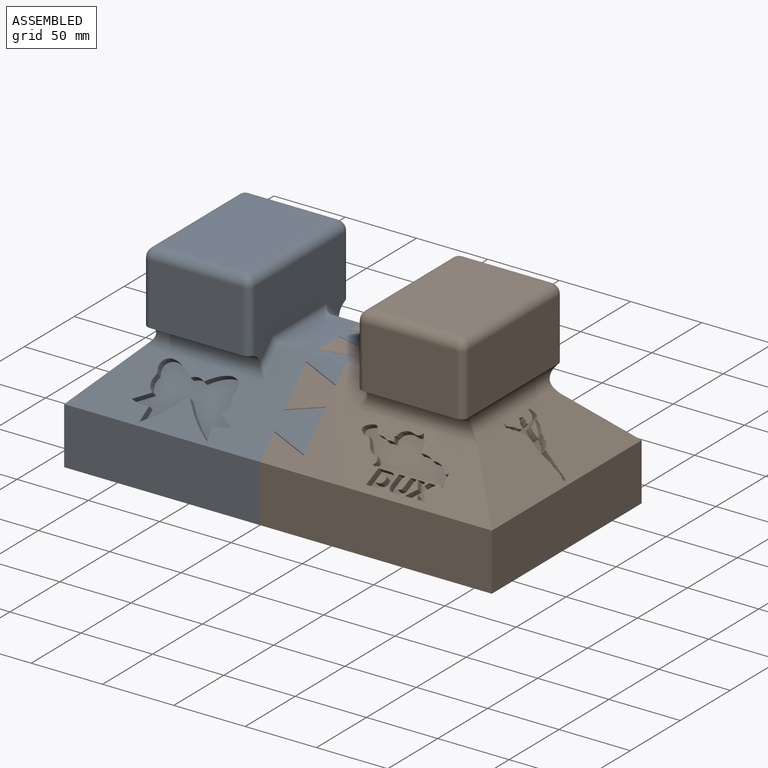
[diagram: assembled view]
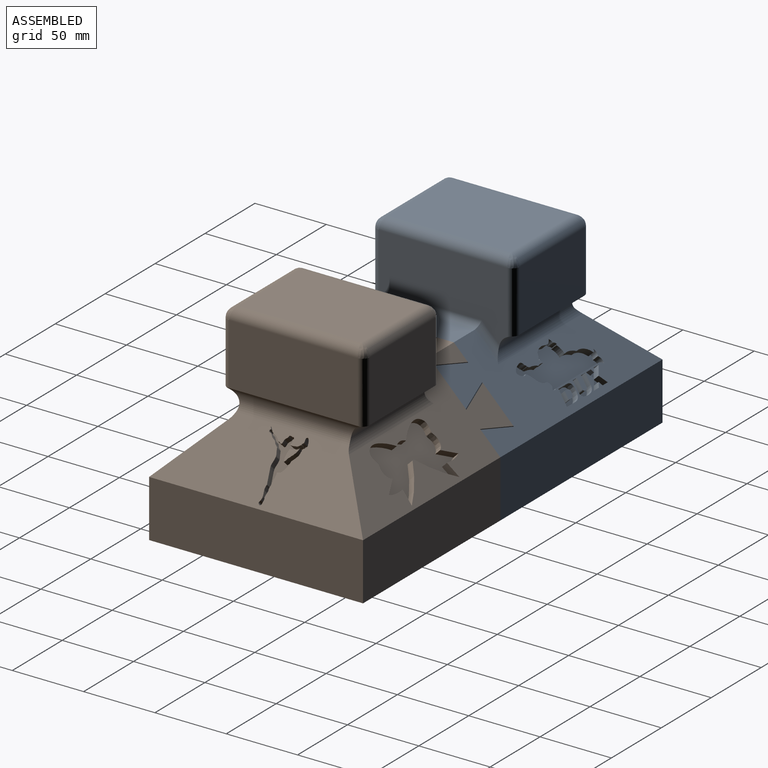
[diagram: assembled view, second angle]
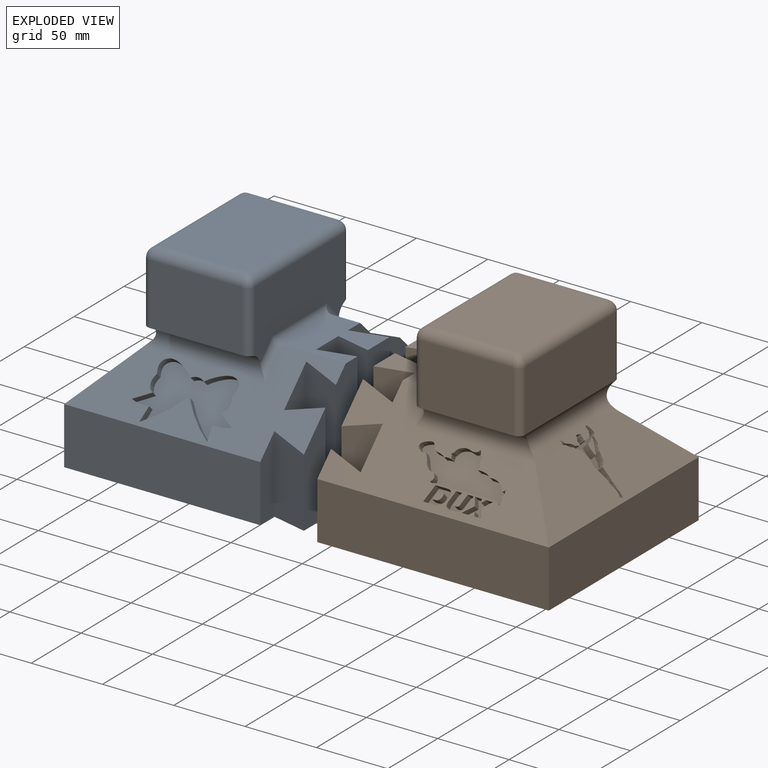
[diagram: exploded view]
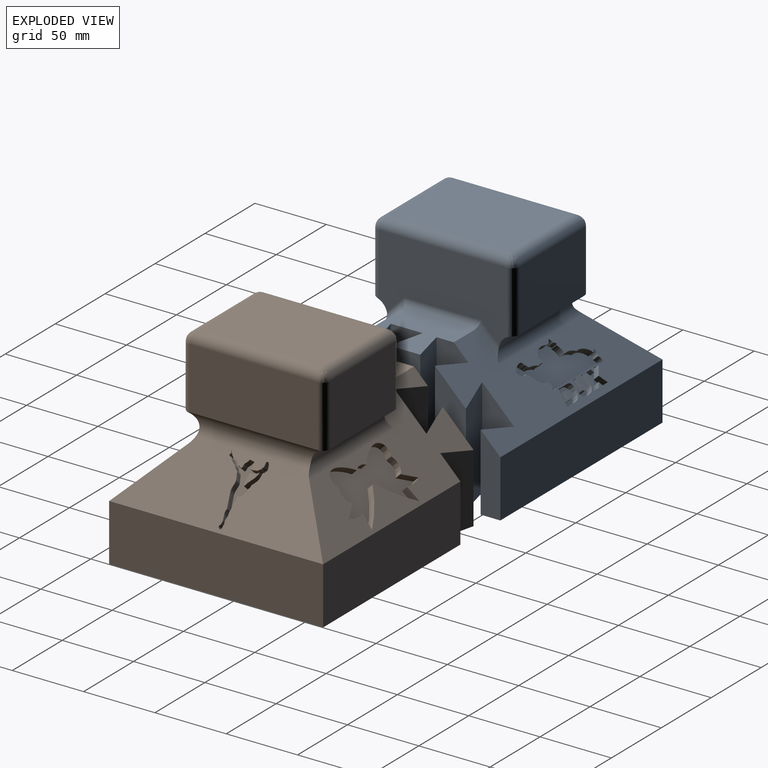
[diagram: exploded view, second angle]
ASSEMBLY  parts=2 mates=3
PART A: 138 faces, bbox 150x162.4x140 mm
  f0: plane 150x36.73mm, normal (0,0.71,0.71), area 5542.2mm2, adj f1,f2,f8,f15,f16,f17,f126,f127
  f1: plane 162.35x50mm, normal (0.71,0,0.71), area 5695.7mm2, adj f0,f6,f7,f17,f30,f34,f37,f38
  f2: plane 162.35x50mm, normal (-0.71,0,0.71), area 5332.3mm2, adj f0,f4,f6,f15,f32,f35,f36,f47
  f3: plane 162.35x150mm, normal (0,0,-1), area 22450.2mm2, adj f4,f7,f8,f33,f34,f35,f36,f37
  f4: plane 137.5x40mm, normal (-1,0,0), area 5500mm2, adj f2,f3,f8,f35
  f5: plane 70.6x0.86mm, normal (0,0,-1), area 59mm2, adj f13,f17,f22,f26
  f6: plane 50x44.85mm, normal (0,0,1), area 1608.4mm2, adj f1,f2,f31,f33,f34,f43,f44,f45
  f7: plane 162.35x40mm, normal (1,0,0), area 6494mm2, adj f1,f3,f8,f38
  f8: plane 150x40mm, normal (0,1,0), area 6000mm2, adj f0,f3,f4,f7
  f9: plane 86x61mm, normal (0,0,1), area 5246mm2, adj f18,f19,f20,f21
  f10: plane 90x50.41mm, normal (0,-1,0), area 3664.1mm2, adj f15,f17,f21,f26,f28,f30,f31,f32
  f11: plane 70.6x0.86mm, normal (0,0,-1), area 59mm2, adj f14,f15,f24,f28
  f12: plane 90x43mm, normal (0,1,0), area 3870mm2, adj f16,f18,f22,f24
  f13: plane 65x43mm, normal (1,0,0), area 2795mm2, adj f5,f19,f22,f26
  f14: plane 65x43mm, normal (-1,0,0), area 2795mm2, adj f11,f20,f24,f28
  f15: cylinder r=10mm len=84.57mm, axis (0,1,0), area 1772.6mm2, adj f0,f2,f10,f11,f16,f24,f28,f32
  f16: cylinder r=10mm len=93.15mm, axis (1,0,0), area 1187.1mm2, adj f0,f12,f15,f17,f22,f24
  f17: cylinder r=10mm len=84.57mm, axis (0,1,0), area 1772.6mm2, adj f0,f1,f5,f10,f16,f22,f26,f30
  f18: cylinder r=7mm len=90mm, axis (1,0,0), area 973.6mm2, adj f9,f12,f23,f25
  f19: cylinder r=7mm len=65mm, axis (0,1,0), area 698.7mm2, adj f9,f13,f23,f27
  f20: cylinder r=7mm len=65mm, axis (0,-1,0), area 698.7mm2, adj f9,f14,f25,f29
  f21: cylinder r=7mm len=90mm, axis (-1,0,0), area 973.6mm2, adj f9,f10,f27,f29
  f22: cylinder r=5mm len=43.34mm, axis (0,0,-1), area 338.2mm2, adj f5,f12,f13,f16,f17,f23
  f23: bspline ~8.55x7mm, area 56.6mm2, adj f18,f19,f22
  f24: cylinder r=5mm len=43.34mm, axis (0,0,1), area 338.2mm2, adj f11,f12,f14,f15,f16,f25
  f25: bspline ~7.39x7mm, area 56.6mm2, adj f18,f20,f24
  f26: cylinder r=5mm len=43.9mm, axis (0,0,1), area 339mm2, adj f5,f10,f13,f17,f27
  f27: bspline ~8.55x7mm, area 56.6mm2, adj f19,f21,f26
  f28: cylinder r=5mm len=43.9mm, axis (0,0,-1), area 339mm2, adj f10,f11,f14,f15,f29
  f29: bspline ~8.55x7mm, area 56.6mm2, adj f20,f21,f28
  f30: cylinder r=5mm len=22.07mm, axis (0.71,0,-0.71), area 157mm2, adj f1,f10,f17,f31
  f31: cylinder r=5mm len=54.14mm, axis (1,0,0), area 404.5mm2, adj f6,f10,f30,f32
  f32: cylinder r=5mm len=22.07mm, axis (-0.71,0,-0.71), area 157mm2, adj f2,f10,f15,f31
  f33: plane 90x22.31mm, normal (0,-1,0), area 2007.8mm2, adj f3,f6,f45,f46
  f34: plane 90x22.31mm, normal (0,-1,0), area 1956.2mm2, adj f1,f3,f6,f42,f43
  f35: plane 54.15x14.15mm, normal (0,-1,0), area 666.3mm2, adj f2,f3,f4,f49
  f36: plane 86.15x22.31mm, normal (0,-1,0), area 1673.1mm2, adj f2,f3,f48,f51
  f37: plane 70.15x22.31mm, normal (0,-1,0), area 1316.2mm2, adj f1,f3,f39,f40
  f38: plane 53.81x13.81mm, normal (0,-1,0), area 647.7mm2, adj f1,f3,f7,f39
  f39: plane 53.81x24.85mm, normal (-0.97,0.23,0), area 1298.9mm2, adj f1,f3,f37,f38
  f40: plane 70.15x24.85mm, normal (0.97,0.23,0), area 1716.6mm2, adj f1,f3,f37,f41
  f41: plane 85.81x21.62mm, normal (0,-1,0), area 1621.5mm2, adj f1,f3,f40,f42
  f42: plane 85.81x24.85mm, normal (-0.97,0.23,0), area 2116.7mm2, adj f1,f3,f34,f41
  f43: plane 90x24.85mm, normal (0.97,0.23,0), area 2300mm2, adj f3,f6,f34,f44
  f44: plane 90x21.62mm, normal (0,-1,0), area 1945.8mm2, adj f3,f6,f43,f45
  f45: plane 90x24.85mm, normal (-0.97,0.23,0), area 2300mm2, adj f3,f6,f33,f44
  f46: plane 90x24.85mm, normal (0.97,0.23,0), area 2300mm2, adj f3,f6,f33,f47
  f47: plane 90x21.62mm, normal (0,-1,0), area 1897.6mm2, adj f2,f3,f6,f46,f48
  f48: plane 86.15x24.85mm, normal (-0.97,0.23,0), area 2125.5mm2, adj f2,f3,f36,f47
  f49: plane 54.15x24.85mm, normal (-0.97,0.23,0), area 1307.7mm2, adj f2,f3,f35,f50
  f50: plane 69.81x21.62mm, normal (0,-1,0), area 1275.5mm2, adj f2,f3,f49,f51
  f51: plane 69.81x24.85mm, normal (0.97,0.23,0), area 1707.8mm2, adj f2,f3,f36,f50
  f52: cylinder r=88.74mm len=23.1mm, axis (-0.71,0,0.71), area 160.9mm2, adj f2,f53,f63,f64
  f53: plane 11.1x11.1mm, normal (-0.11,0.99,-0.11), area 54.1mm2, adj f2,f52,f54,f64
  f54: cylinder r=24.42mm len=12.69mm, axis (-0.71,0,0.71), area 64.5mm2, adj f2,f53,f55,f64
  f55: plane 10.97x8.54mm, normal (-0.59,0.54,-0.59), area 65.3mm2, adj f2,f54,f56,f64
  f56: extruded ~23.17x19.54mm, area 235.3mm2, adj f2,f55,f57,f64
  f57: cylinder r=8mm len=9.3mm, axis (-0.71,0,0.71), area 49.6mm2, adj f2,f56,f58,f64
  f58: extruded ~23.17x19.54mm, area 235.3mm2, adj f2,f57,f59,f64
  f59: plane 10.97x8.54mm, normal (-0.59,-0.54,-0.59), area 65.3mm2, adj f2,f58,f60,f64
  f60: cylinder r=24.42mm len=12.69mm, axis (-0.71,0,0.71), area 64.5mm2, adj f2,f59,f61,f64
  f61: plane 11.1x11.1mm, normal (-0.11,-0.99,-0.11), area 54.1mm2, adj f2,f60,f62,f64
  f62: cylinder r=88.74mm len=23.1mm, axis (-0.71,0,0.71), area 160.9mm2, adj f2,f61,f63,f64
  f63: cylinder r=3.25mm len=3.59mm, axis (-0.71,0,0.71), area 7mm2, adj f2,f52,f62,f64
  f64: plane 69.75x29.6mm, normal (-0.71,0,0.71), area 1577.1mm2, adj f52,f53,f54,f55,f56,f57,f58,f59
  f65: plane 4.77x3.54mm, normal (0.71,0,-0.71), area 23.8mm2, adj f1,f66,f76,f77
  f66: plane 7.38x7.38mm, normal (-0.3,0.9,0.3), area 30.1mm2, adj f1,f65,f67,f77
  f67: plane 7.75x7.75mm, normal (0.51,0.69,-0.51), area 43mm2, adj f1,f66,f68,f77
  f68: plane 5.07x3.55mm, normal (-0.71,0,0.71), area 25.4mm2, adj f1,f67,f69,f77
  f69: plane 5.6x5.6mm, normal (-0.48,-0.74,0.48), area 19.7mm2, adj f1,f68,f70,f77
  f70: plane 5.6x5.6mm, normal (-0.25,0.93,0.25), area 15.6mm2, adj f1,f69,f71,f77
  f71: plane 5.05x3.54mm, normal (-0.71,0,0.71), area 25.2mm2, adj f1,f70,f72,f77
  f72: plane 7.74x7.74mm, normal (0.32,-0.89,-0.32), area 33.5mm2, adj f1,f71,f73,f77
  f73: plane 7.38x7.38mm, normal (-0.5,-0.71,0.5), area 38.4mm2, adj f1,f72,f74,f77
  f74: plane 4.77x3.54mm, normal (0.71,0,-0.71), area 23.9mm2, adj f1,f73,f75,f77
  f75: plane 5.26x5.26mm, normal (0.47,0.75,-0.47), area 16.4mm2, adj f1,f74,f76,f77
  f76: plane 5.26x5.26mm, normal (0.24,-0.94,-0.24), area 13mm2, adj f1,f65,f75,f77
  f77: plane 16.24x8.06mm, normal (0.71,0,0.71), area 92.6mm2, adj f65,f66,f67,f68,f69,f70,f71,f72
  f78: plane 8.9x3.54mm, normal (0.71,0,-0.71), area 44.5mm2, adj f1,f79,f85,f86
  f79: plane 11.64x11.64mm, normal (0.18,0.97,-0.18), area 59.2mm2, adj f1,f78,f80,f86
  f80: plane 8.75x3.54mm, normal (-0.71,0,0.71), area 43.7mm2, adj f1,f79,f85,f86
  f81: plane 7.56x7.56mm, normal (-0.18,-0.97,0.18), area 29.4mm2, adj f82,f84,f86,f87
  f82: plane 3.54x3.54mm, normal (-0.71,0,0.71), area 13.3mm2, adj f81,f83,f86,f87
  f83: extruded ~7.56x7.56mm, area 41.9mm2, adj f82,f84,f86,f87
  f84: plane 3.54x3.54mm, normal (0.71,0,-0.71), area 12.8mm2, adj f81,f83,f86,f87
  f85: extruded ~11.64x11.64mm, area 83mm2, adj f1,f78,f80,f86
  f86: plane 15.23x8.1mm, normal (0.71,0,0.71), area 116.9mm2, adj f78,f79,f80,f81,f82,f83,f84,f85
  f87: plane 5.9x4.03mm, normal (0.71,0,0.71), area 25.6mm2, adj f81,f82,f83,f84
  f88: plane 4.09x3.55mm, normal (0.71,0,-0.71), area 20.4mm2, adj f1,f89,f95,f96
  f89: plane 8.72x8.72mm, normal (0.18,0.97,-0.18), area 37.9mm2, adj f1,f88,f90,f96
  f90: extruded ~4.59x4.59mm, area 28.9mm2, adj f1,f89,f91,f96
  f91: plane 8.73x8.73mm, normal (-0.17,-0.97,0.17), area 37.9mm2, adj f1,f90,f92,f96
  f92: plane 4.06x3.54mm, normal (0.71,0,-0.71), area 20.3mm2, adj f1,f91,f93,f96
  f93: plane 8.93x8.93mm, normal (0.18,0.97,-0.18), area 39.4mm2, adj f1,f92,f94,f96
  f94: extruded ~12.4x6.54mm, area 85.4mm2, adj f1,f93,f95,f96
  f95: plane 8.93x8.93mm, normal (-0.18,-0.97,0.18), area 39.5mm2, adj f1,f88,f94,f96
  f96: plane 14.54x8.54mm, normal (0.71,0,0.71), area 101.6mm2, adj f88,f89,f90,f91,f92,f93,f94,f95
  f97: plane 3.93x3.93mm, normal (-0.55,-0.62,0.55), area 4.5mm2, adj f1,f98,f120,f121
  f98: cylinder r=4.23mm len=5.57mm, axis (0.71,0,0.71), area 14.9mm2, adj f1,f97,f99,f121
  f99: cylinder r=7.87mm len=4.91mm, axis (0.71,0,0.71), area 25mm2, adj f1,f98,f100,f121
  f100: extruded ~7.97x5.56mm, area 43.4mm2, adj f1,f99,f101,f121
  f101: cylinder r=1.98mm len=4.67mm, axis (0.71,0,0.71), area 10.4mm2, adj f1,f100,f102,f121
  f102: extruded ~9.63x9.07mm, area 103mm2, adj f1,f101,f103,f121
  f103: extruded ~10.79x10.79mm, area 78.5mm2, adj f1,f102,f104,f121
  f104: extruded ~7.51x7.51mm, area 33.3mm2, adj f1,f103,f105,f121
  f105: cylinder r=3.21mm len=4.07mm, axis (0.71,0,0.71), area 10.3mm2, adj f1,f104,f106,f121
  f106: extruded ~3.91x3.91mm, area 5mm2, adj f1,f105,f107,f121
  f107: plane 43.05x3.54mm, normal (-0.71,0,0.71), area 215.3mm2, adj f1,f106,f108,f121
  f108: cylinder r=4.71mm len=5mm, axis (0.71,0,0.71), area 21.4mm2, adj f1,f107,f109,f121
  f109: cylinder r=4.84mm len=7.45mm, axis (0.71,0,0.71), area 29.8mm2, adj f1,f108,f110,f121
  f110: cylinder r=4.09mm len=6.99mm, axis (0.71,0,0.71), area 26.2mm2, adj f1,f109,f111,f121
  f111: cylinder r=1.42mm len=4.71mm, axis (0.71,0,0.71), area 13.3mm2, adj f1,f110,f112,f121
  f112: cylinder r=10.91mm len=11.21mm, axis (0.71,0,0.71), area 66.8mm2, adj f1,f111,f113,f121
  f113: cylinder r=13mm len=9.61mm, axis (0.71,0,0.71), area 50.7mm2, adj f1,f112,f114,f121
  f114: cylinder r=9.53mm len=8.22mm, axis (0.71,0,0.71), area 34.8mm2, adj f1,f113,f115,f121
  f115: cylinder r=1.68mm len=3.75mm, axis (0.71,0,0.71), area 5.2mm2, adj f1,f114,f116,f121
  f116: cylinder r=2.67mm len=4.93mm, axis (0.71,0,0.71), area 15.6mm2, adj f1,f115,f117,f121
  f117: cylinder r=4.2mm len=5.7mm, axis (0.71,0,0.71), area 16.9mm2, adj f1,f116,f118,f121
  f118: extruded ~16.05x7.86mm, area 95mm2, adj f1,f117,f119,f121
  f119: plane 4.14x4.14mm, normal (0.58,0.56,-0.58), area 7.6mm2, adj f1,f118,f120,f121
  f120: plane 4.11x4.11mm, normal (-0.24,0.94,0.24), area 4.3mm2, adj f1,f97,f119,f121
  f121: plane 66.94x20.26mm, normal (0.71,0,0.71), area 1017.5mm2, adj f97,f98,f99,f100,f101,f102,f103,f104
  f122: extruded ~6.57x6.57mm, area 26.2mm2, adj f123,f135,f136,f137
  f123: cylinder r=4.96mm len=5.68mm, axis (0,0.71,0.71), area 15.8mm2, adj f122,f124,f136,f137
  f124: cylinder r=14.23mm len=7.17mm, axis (0,0.71,0.71), area 26.1mm2, adj f123,f125,f136,f137
  f125: cylinder r=8.39mm len=6.06mm, axis (0,0.71,0.71), area 33.1mm2, adj f124,f135,f136,f137
  f126: extruded ~9.84x9.84mm, area 49.6mm2, adj f0,f127,f134,f136
  f127: extruded ~8.52x8.52mm, area 75.5mm2, adj f0,f126,f128,f136
  f128: extruded ~7.09x4.98mm, area 38.4mm2, adj f0,f127,f129,f136
  f129: extruded ~8.92x7.89mm, area 89.8mm2, adj f0,f128,f130,f136
  f130: extruded ~11.32x11.32mm, area 137.8mm2, adj f0,f129,f131,f136
  f131: extruded ~19.72x19.72mm, area 118.1mm2, adj f0,f130,f132,f136
  f132: extruded ~10.6x10.6mm, area 50.9mm2, adj f0,f131,f133,f136
  f133: extruded ~18.55x18.55mm, area 128.8mm2, adj f0,f132,f134,f136
  f134: extruded ~10.19x10.19mm, area 59.3mm2, adj f0,f126,f133,f136
  f135: cylinder r=12.09mm len=7.83mm, axis (0,0.71,0.71), area 34.8mm2, adj f122,f125,f136,f137
  f136: plane 33.38x33.38mm, normal (0,0.71,0.71), area 317.2mm2, adj f122,f123,f124,f125,f126,f127,f128,f129
  f137: plane 7.33x7.33mm, normal (0,0.71,0.71), area 30.2mm2, adj f122,f123,f124,f125,f135
PART B: same geometry as A
PLACE A rot(axis=(0,0,1),90deg) t=(-180.52,194.41,35.3)mm
PLACE B rot(axis=(0,0,-1),90deg) t=(-180.67,194.41,35.3)mm fixed
MATE planar A.f44 <-> B.f33  axis (1,0,0) through (-168.17,202.41,80.3)mm
MATE planar A.f9 <-> B.f9  axis (0,0,1) through (-255.52,194.41,130.3)mm
MATE planar A.f4 <-> B.f7  axis (0,-1,0) through (-261.77,119.41,10.3)mm
